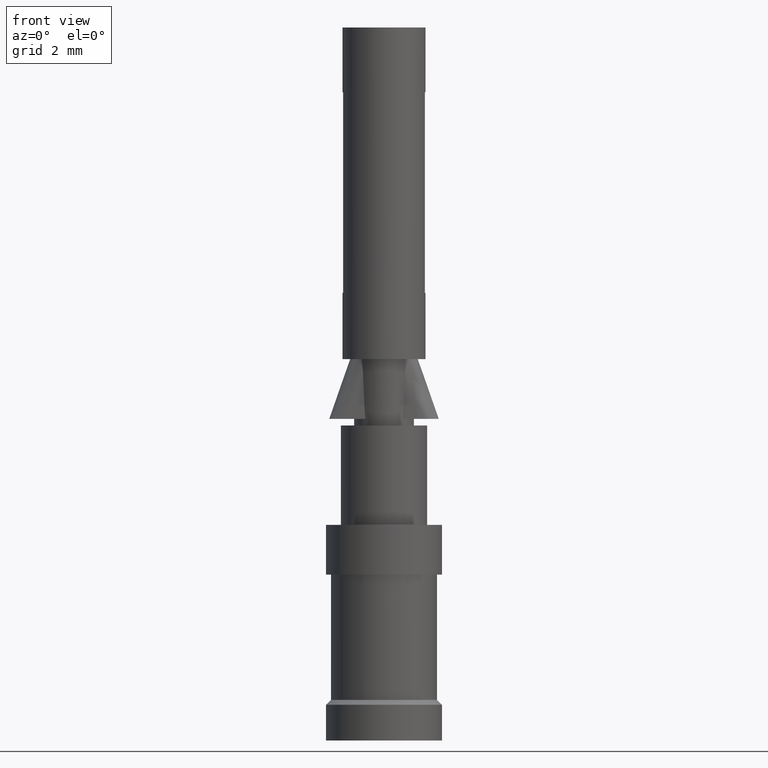
[diagram: clean part render]
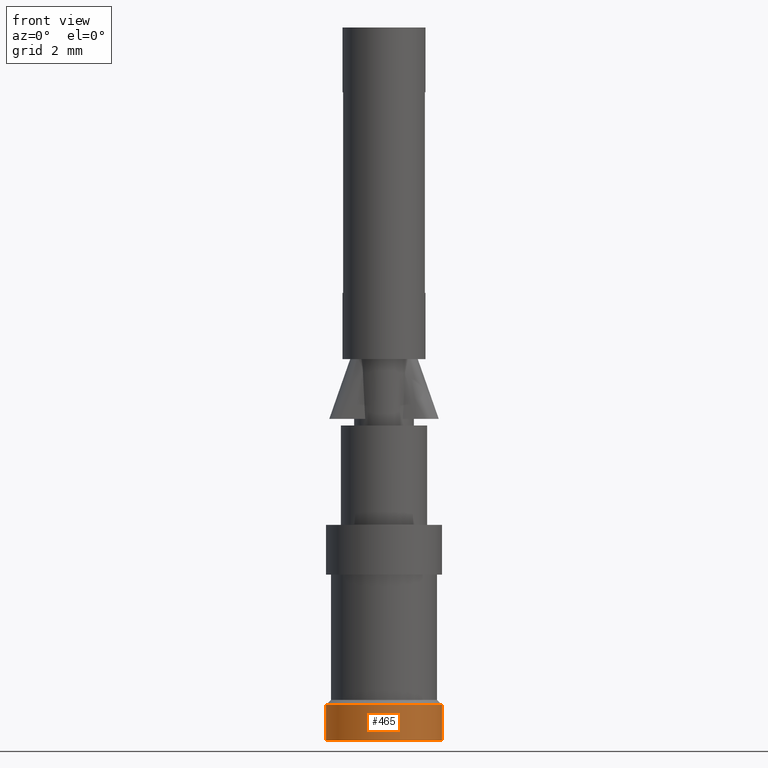
[diagram: same view with one face highlighted and labeled with its STEP entity id]
A machine part, front view. The second image highlights one B-rep face of the part: STEP entity #465.
In plain terms, the highlighted cylindrical surface (partial cylindrical patch) has radius 1.75 mm, axis along (0, 0, -1).
Its self-contained STEP definition (entity closure, byte-faithful):
#9 = ORIENTED_EDGE ( 'NONE', *, *, #386, .F. ) ;
#87 = CARTESIAN_POINT ( 'NONE',  ( -1.750000000000000000, 0.000000000000000000, 1.000000000000000000 ) ) ;
#156 = EDGE_CURVE ( 'NONE', #564, #1249, #474, .T. ) ;
#163 = LINE ( 'NONE', #477, #1141 ) ;
#164 = CARTESIAN_POINT ( 'NONE',  ( -1.749999999730765810, 0.000000000000000000, 1.074999999999999956 ) ) ;
#222 = LINE ( 'NONE', #87, #1130 ) ;
#286 = VERTEX_POINT ( 'NONE', #543 ) ;
#304 = CARTESIAN_POINT ( 'NONE',  ( -1.750000000000000000, 0.000000000000000000, 0.000000000000000000 ) ) ;
#386 = EDGE_CURVE ( 'NONE', #564, #286, #163, .T. ) ;
#465 = ADVANCED_FACE ( 'NONE', ( #1727 ), #1186, .T. ) ;
#474 = CIRCLE ( 'NONE', #1430, 1.750000000000000000 ) ;
#477 = CARTESIAN_POINT ( 'NONE',  ( 1.750000000000000000, 2.143131898507868297E-16, 1.000000000000000000 ) ) ;
#543 = CARTESIAN_POINT ( 'NONE',  ( 1.750000000000000000, 2.143131898507868297E-16, 0.000000000000000000 ) ) ;
#564 = VERTEX_POINT ( 'NONE', #1451 ) ;
#609 = CARTESIAN_POINT ( 'NONE',  ( 0.000000000000000000, 0.000000000000000000, 0.000000000000000000 ) ) ;
#769 = DIRECTION ( 'NONE',  ( 1.000000000000000000, 1.224646799147350002E-16, 0.000000000000000000 ) ) ;
#919 = CARTESIAN_POINT ( 'NONE',  ( 0.000000000000000000, 0.000000000000000000, 1.000000000000000000 ) ) ;
#921 = DIRECTION ( 'NONE',  ( -1.000000000000000000, 0.000000000000000000, 0.000000000000000000 ) ) ;
#979 = EDGE_LOOP ( 'NONE', ( #9, #1407, #1563, #1054 ) ) ;
#992 = DIRECTION ( 'NONE',  ( 0.000000000000000000, 0.000000000000000000, -1.000000000000000000 ) ) ;
#1033 = VERTEX_POINT ( 'NONE', #304 ) ;
#1054 = ORIENTED_EDGE ( 'NONE', *, *, #1223, .F. ) ;
#1130 = VECTOR ( 'NONE', #1336, 1000.000000000000000 ) ;
#1141 = VECTOR ( 'NONE', #992, 1000.000000000000000 ) ;
#1153 = DIRECTION ( 'NONE',  ( 0.000000000000000000, 0.000000000000000000, -1.000000000000000000 ) ) ;
#1170 = DIRECTION ( 'NONE',  ( 0.000000000000000000, 0.000000000000000000, -1.000000000000000000 ) ) ;
#1186 = CYLINDRICAL_SURFACE ( 'NONE', #1691, 1.750000000000000000 ) ;
#1223 = EDGE_CURVE ( 'NONE', #286, #1033, #1528, .T. ) ;
#1236 = AXIS2_PLACEMENT_3D ( 'NONE', #609, #1153, #769 ) ;
#1249 = VERTEX_POINT ( 'NONE', #164 ) ;
#1324 = DIRECTION ( 'NONE',  ( -1.000000000000000000, 0.000000000000000000, 0.000000000000000000 ) ) ;
#1336 = DIRECTION ( 'NONE',  ( 0.000000000000000000, 0.000000000000000000, -1.000000000000000000 ) ) ;
#1407 = ORIENTED_EDGE ( 'NONE', *, *, #156, .T. ) ;
#1430 = AXIS2_PLACEMENT_3D ( 'NONE', #1737, #1170, #921 ) ;
#1451 = CARTESIAN_POINT ( 'NONE',  ( 1.749999999730765810, 2.143131898178151063E-16, 1.074999999999999956 ) ) ;
#1528 = CIRCLE ( 'NONE', #1236, 1.750000000000000000 ) ;
#1563 = ORIENTED_EDGE ( 'NONE', *, *, #1591, .T. ) ;
#1591 = EDGE_CURVE ( 'NONE', #1249, #1033, #222, .T. ) ;
#1691 = AXIS2_PLACEMENT_3D ( 'NONE', #919, #1747, #1324 ) ;
#1727 = FACE_OUTER_BOUND ( 'NONE', #979, .T. ) ;
#1737 = CARTESIAN_POINT ( 'NONE',  ( 5.421010862427519705E-17, 0.000000000000000000, 1.074999999999999956 ) ) ;
#1747 = DIRECTION ( 'NONE',  ( 0.000000000000000000, 0.000000000000000000, -1.000000000000000000 ) ) ;